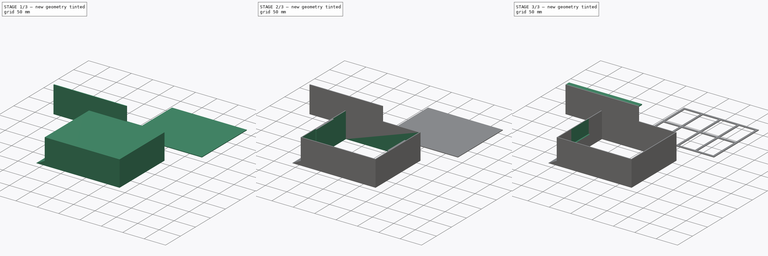
[diagram: build sequence overview — one tinted view per stage of 3, left to right]
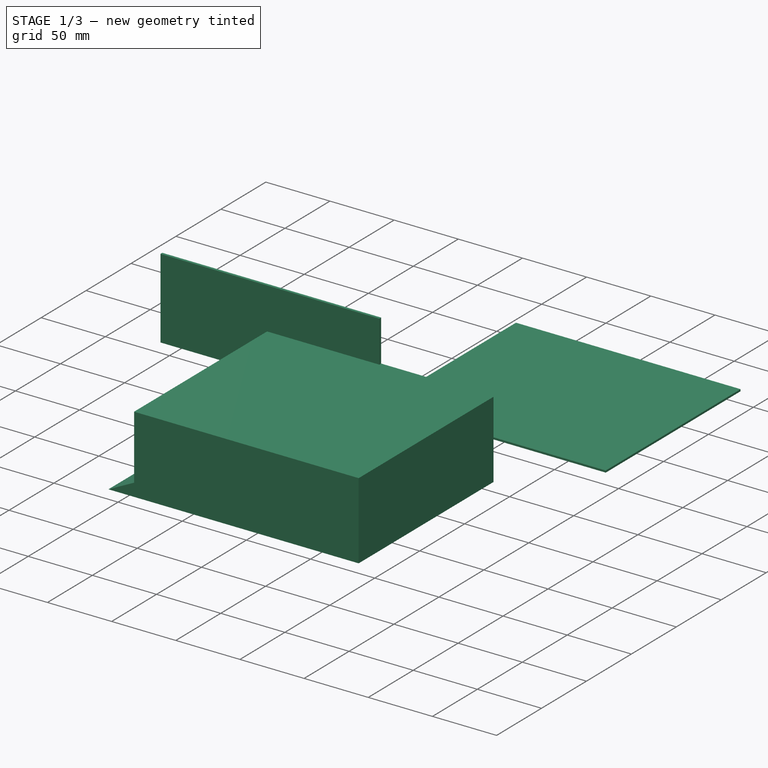
[diagram: stage 1 of 3 — iso view after this stage's code; geometry added in this stage tinted green]
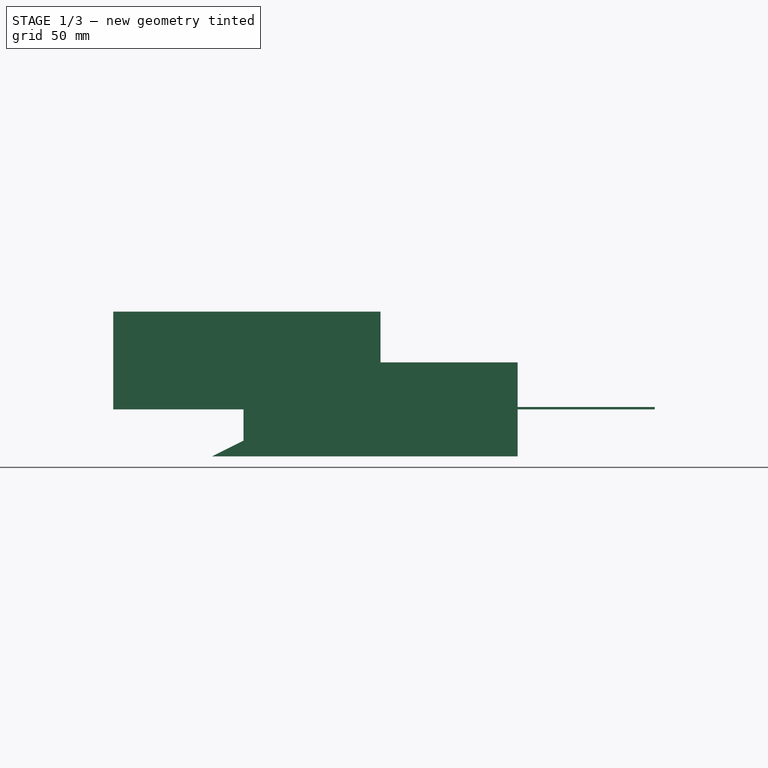
[diagram: stage 1 of 3 — front view after this stage's code; geometry added in this stage tinted green]
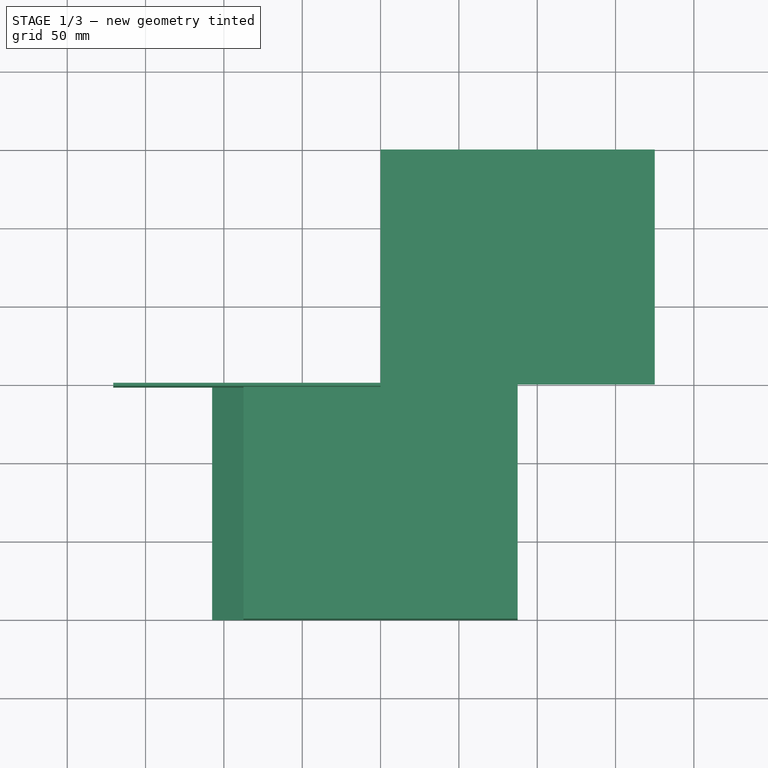
[diagram: stage 1 of 3 — top view after this stage's code; geometry added in this stage tinted green]
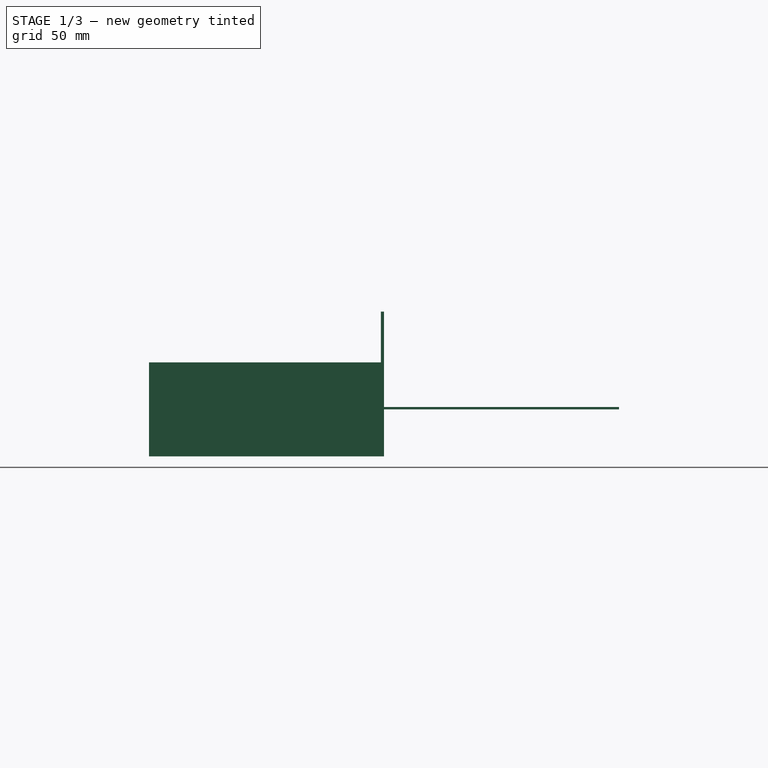
[diagram: stage 1 of 3 — right view after this stage's code; geometry added in this stage tinted green]
FCSTD DOCUMENT  (FreeCAD 0.21R33771 (Git))
Label: v3
License: All rights reserved
LicenseURL: http://en.wikipedia.org/wiki/All_rights_reserved
objects: Sketcher::SketchObject×8, PartDesign::Pad×4, PartDesign::Pocket×4, PartDesign::Body×3, App::Part×3, App::MeasureDistance×2, Spreadsheet::Sheet×1
note: 27 computed .brp shape members not serialized (recipe doc carries the construction recipe); baked Part::Feature solids carry a one-line shape summary decoded from their .brp

FEATURE [Sketcher::SketchObject] Sketch
  FullyConstrained = true
  MapMode = 5
  Placement = pos=(0,0,0) rot=(1,0,0;1.5708rad)
  Support = -> [XZ_Plane001]
  expr: Constraints[10] = <<parameters>>.wedge_height
  expr: Constraints[11] = <<parameters>>.wedge_length + <<parameters>>.length
  expr: Constraints[13] = <<parameters>>.height / 2
  expr: Constraints[14] = <<parameters>>.height
  expr: Constraints[8] = <<parameters>>.length
  expr: Constraints[9] = <<parameters>>.length / 2
  sketch-geometry (5):
    g0: LineSegment StartX=-87.5 StartY=30 StartZ=0 EndX=87.5 EndY=30 EndZ=0
    g1: LineSegment StartX=87.5 StartY=30 StartZ=0 EndX=87.5 EndY=-30 EndZ=0
    g2: LineSegment StartX=-107.5 StartY=-30 StartZ=0 EndX=87.5 EndY=-30 EndZ=0
    g3: LineSegment StartX=-107.5 StartY=-30 StartZ=0 EndX=-87.5 EndY=-20 EndZ=0
    g4: LineSegment StartX=-87.5 StartY=30 StartZ=0 EndX=-87.5 EndY=-20 EndZ=0
  constraints (15):
    c: Coincident(g0,g1)
    c: Horizontal(g0)
    c: Vertical(g1)
    c: Coincident(g2,g1)
    c: Horizontal(g2)
    c: Coincident(g3,g2)
    c: Coincident(g4,g3)
    c: Vertical(g4)
    c: DistanceX(g4,g0) = 175
    c: DistanceX(g1) = 87.5
    c: DistanceY(g2,g3) = 10
    c: DistanceX(g2,g2) = 195
    c: Coincident(g0,g4)
    c: DistanceY(g-1,g0) = 30
    c: DistanceY(g1,g1) = 60
FEATURE [PartDesign::Pad] Pad
  Direction = (0,-1,0)
  Length = 150
  Length2 = 10
  Placement = pos=(0,0,0) rot=(1,0,0;1.5708rad)
  Profile = -> Sketch
  ReferenceAxis = -> Sketch [N_Axis]
  Type = 0
  UseCustomVector = true
  expr: Length = <<parameters>>.width
FEATURE [PartDesign::Body] Body
  Group = -> [Sketch,Pad,Sketch002,Pocket,Sketch003,Pocket001,Sketch004,Pocket002]
  Origin = -> Origin001
  Tip = -> Pocket002
FEATURE [App::Part] Part  label="main_body"
  Group = -> [Body]
  Origin = -> Origin
FEATURE [Sketcher::SketchObject] Sketch005
  FullyConstrained = true
  MapMode = 5
  Placement = pos=(0,0,0) rot=(1,0,0;1.5708rad)
  Support = -> [XZ_Plane003]
  expr: Constraints[8] = <<parameters>>.length - 2 * <<parameters>>.sheet_thinkness - 2 * <<parameters>>.error
  expr: Constraints[9] = <<parameters>>.width - 2 * (<<parameters>>.sheet_thinkness + <<parameters>>.wheel_thickness + <<parameters>>.wheel_margin_side) + 2 * (<<parameters>>.error + <<parameters>>.outer_interlock_t)
  sketch-geometry (4):
    g0: LineSegment StartX=-170.6 StartY=62.4 StartZ=0 EndX=0 EndY=62.4 EndZ=0
    g1: LineSegment StartX=0 StartY=62.4 StartZ=0 EndX=0 EndY=0 EndZ=0
    g2: LineSegment StartX=0 StartY=0 StartZ=0 EndX=-170.6 EndY=0 EndZ=0
    g3: LineSegment StartX=-170.6 StartY=0 StartZ=0 EndX=-170.6 EndY=62.4 EndZ=0
  constraints (12):
    c: Coincident(g0,g1)
    c: Coincident(g1,g2)
    c: Coincident(g2,g3)
    c: Coincident(g3,g0)
    c: Horizontal(g0)
    c: Horizontal(g2)
    c: Vertical(g1)
    c: Vertical(g3)
    c: DistanceX(g0,g0) = 170.6
    c: DistanceY(g3,g3) = 62.4
    c: DistanceX(g-1,g1) = 0
    c: DistanceY(g1,g-1) = 0
FEATURE [PartDesign::Pad] Pad001  label="base_body"
  Direction = (0,-1,-2e-16)
  Length = 2
  Length2 = 10
  Placement = pos=(0,0,0) rot=(1,0,0;1.5708rad)
  Profile = -> Sketch005
  ReferenceAxis = -> Sketch005 [N_Axis]
  Type = 0
  expr: Length = <<parameters>>.base_sheet_thickness
FEATURE [PartDesign::Body] Body001  label="base"
  Group = -> [Sketch005,Pad001,Sketch006,Pad002]
  Origin = -> Origin003
  Tip = -> Pad002
FEATURE [App::Part] Part001  label="motor_base"
  Group = -> [Body001]
  Origin = -> Origin002
  Placement = pos=(85.5,-106,-23.5) rot=(1,0,0;4.71239rad)
FEATURE [Sketcher::SketchObject] Sketch007
  FullyConstrained = true
  MapMode = 5
  Support = -> [XY_Plane005]
  expr: Constraints[8] = <<parameters>>.width
  expr: Constraints[9] = <<parameters>>.length
  sketch-geometry (4):
    g0: LineSegment StartX=0 StartY=150 StartZ=0 EndX=175 EndY=150 EndZ=0
    g1: LineSegment StartX=175 StartY=150 StartZ=0 EndX=175 EndY=0 EndZ=0
    g2: LineSegment StartX=175 StartY=0 StartZ=0 EndX=0 EndY=0 EndZ=0
    g3: LineSegment StartX=0 StartY=0 StartZ=0 EndX=0 EndY=150 EndZ=0
  constraints (12):
    c: Coincident(g0,g1)
    c: Coincident(g1,g2)
    c: Coincident(g2,g3)
    c: Coincident(g3,g0)
    c: Horizontal(g0)
    c: Horizontal(g2)
    c: Vertical(g1)
    c: Vertical(g3)
    c: DistanceY(g1,g1) = 150
    c: DistanceX(g0,g0) = 175
    c: DistanceX(g0,g-1) = 0
    c: DistanceY(g2,g-1) = 0
FEATURE [PartDesign::Pad] Pad003  label="top_base"
  Direction = (0,0,1)
  Length = 1.5
  Length2 = 10
  Profile = -> Sketch007
  ReferenceAxis = -> Sketch007 [N_Axis]
  Type = 0
  expr: Length = <<parameters>>.top_sheet
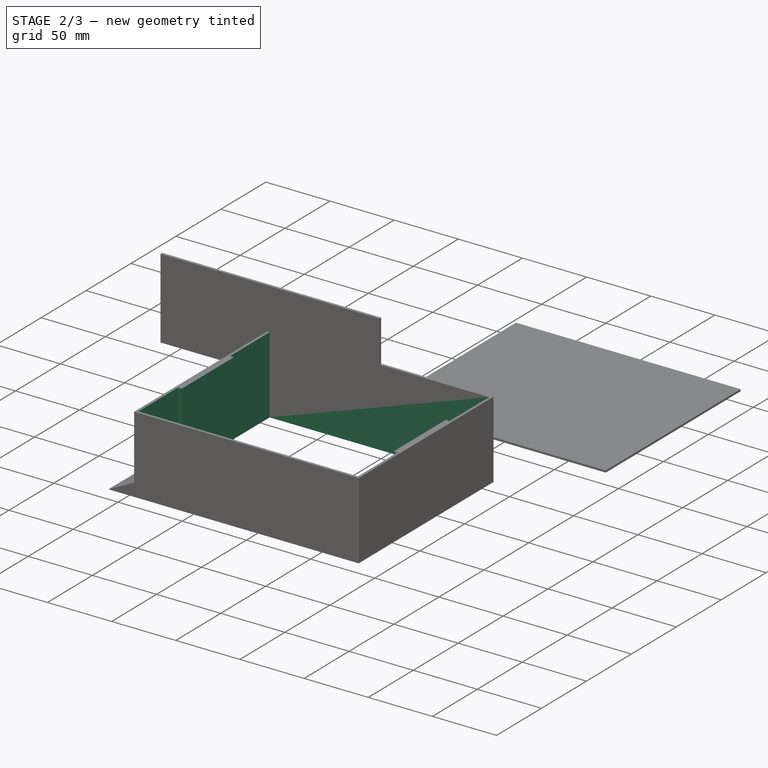
[diagram: stage 2 of 3 — iso view after this stage's code; geometry added in this stage tinted green]
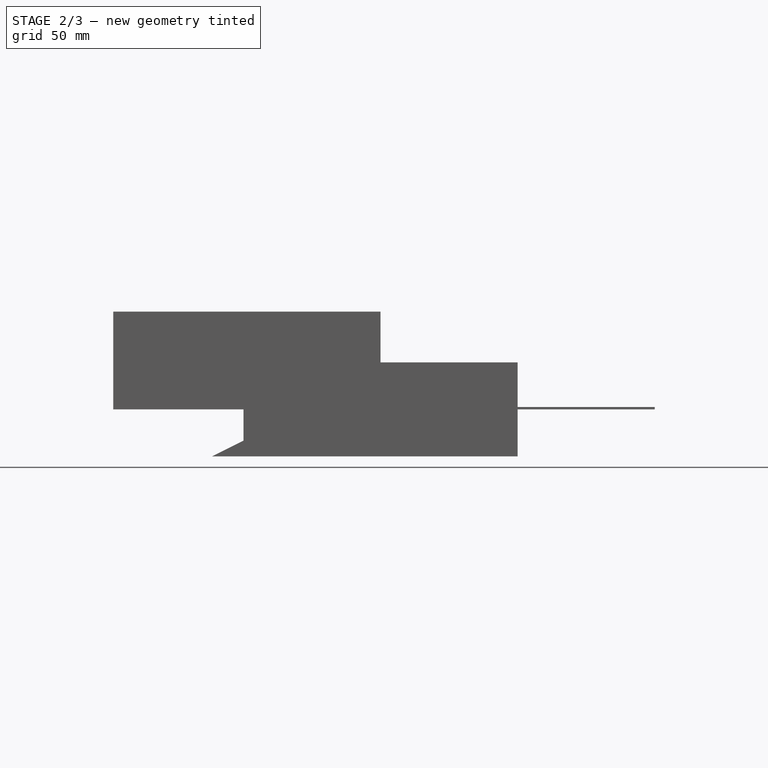
[diagram: stage 2 of 3 — front view after this stage's code; geometry added in this stage tinted green]
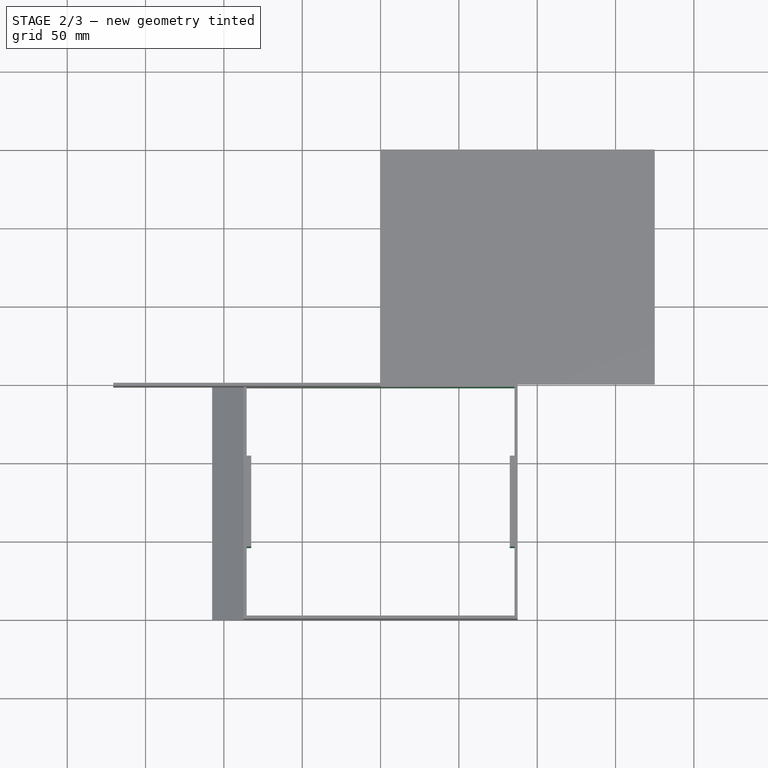
[diagram: stage 2 of 3 — top view after this stage's code; geometry added in this stage tinted green]
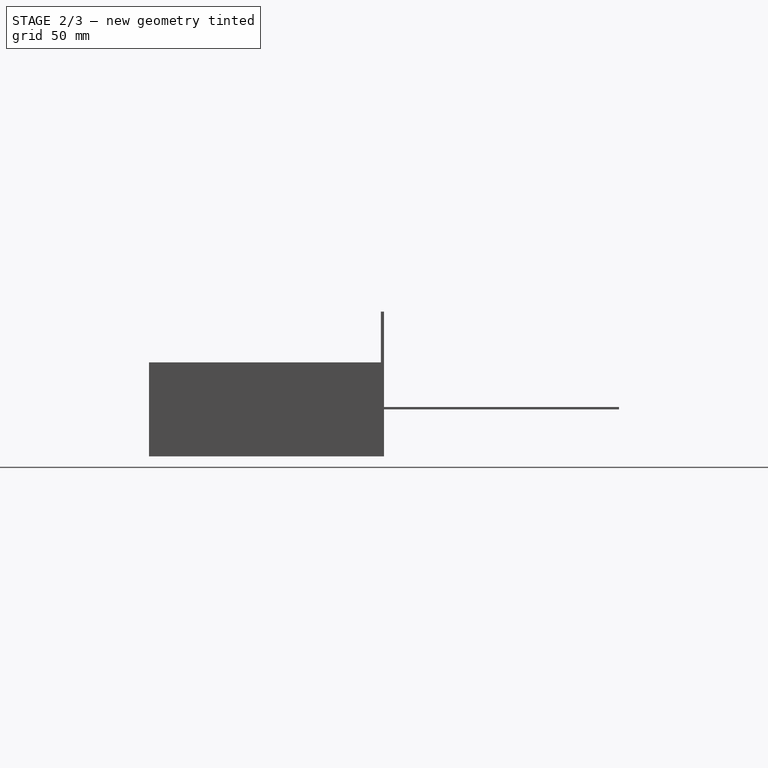
[diagram: stage 2 of 3 — right view after this stage's code; geometry added in this stage tinted green]
FEATURE [Sketcher::SketchObject] Sketch002  label="bottom_cut"
  FullyConstrained = true
  MapMode = 5
  Placement = pos=(0,0,-30) rot=(1,0,0;3.14159rad)
  Support = -> [Pad]
  expr: Constraints[10] = <<parameters>>.length / 2 - <<parameters>>.sheet_thinkness
  expr: Constraints[11] = <<parameters>>.sheet_thinkness
  expr: Constraints[22] = <<parameters>>.wheel_thickness + <<parameters>>.wheel_margin_side
  expr: Constraints[23] = <<parameters>>.width - <<parameters>>.sheet_thinkness
  expr: Constraints[8] = <<parameters>>.wheel_thickness + <<parameters>>.wheel_margin_side
  expr: Constraints[9] = <<parameters>>.length - 2 * <<parameters>>.sheet_thinkness
  sketch-geometry (8):
    g0: LineSegment StartX=-85.5 StartY=46 StartZ=0 EndX=85.5 EndY=46 EndZ=0
    g1: LineSegment StartX=85.5 StartY=46 StartZ=0 EndX=85.5 EndY=2 EndZ=0
    g2: LineSegment StartX=85.5 StartY=2 StartZ=0 EndX=-85.5 EndY=2 EndZ=0
    g3: LineSegment StartX=-85.5 StartY=2 StartZ=0 EndX=-85.5 EndY=46 EndZ=0
    g4: LineSegment StartX=-85.5 StartY=148 StartZ=0 EndX=85.5 EndY=148 EndZ=0
    g5: LineSegment StartX=85.5 StartY=148 StartZ=0 EndX=85.5 EndY=104 EndZ=0
    g6: LineSegment StartX=85.5 StartY=104 StartZ=0 EndX=-85.5 EndY=104 EndZ=0
    g7: LineSegment StartX=-85.5 StartY=104 StartZ=0 EndX=-85.5 EndY=148 EndZ=0
  constraints (24):
    c: Coincident(g0,g1)
    c: Coincident(g1,g2)
    c: Coincident(g2,g3)
    c: Coincident(g3,g0)
    c: Horizontal(g0)
    c: Horizontal(g2)
    c: Vertical(g1)
    c: Vertical(g3)
    c: DistanceY(g1,g1) = 44
    c: DistanceX(g2,g2) = 171
    c: DistanceX(g-1,g1) = 85.5
    c: DistanceY(g-1,g1) = 2
    c: Coincident(g4,g5)
    c: Coincident(g5,g6)
    c: Coincident(g6,g7)
    c: Coincident(g7,g4)
    c: Horizontal(g4)
    c: Horizontal(g6)
    c: Vertical(g5)
    c: Vertical(g7)
    c: DistanceX(g5,g0) = 0
    c: DistanceX(g6,g0) = 0
    c: DistanceY(g6,g4) = 44
    c: DistanceY(g-1,g4) = 148
FEATURE [PartDesign::Pocket] Pocket  label="wheel_pocket"
  BaseFeature = -> Pad
  Direction = (0,0,1)
  Length = 60
  Length2 = 5
  Placement = pos=(0,0,0) rot=(1,0,0;1.5708rad)
  Profile = -> Sketch002
  ReferenceAxis = -> Sketch002 [N_Axis]
  Type = 0
  expr: Length = <<parameters>>.height
FEATURE [Sketcher::SketchObject] Sketch003  label="interlock"
  FullyConstrained = true
  MapMode = 5
  Placement = pos=(0,0,-30) rot=(1,0,0;3.14159rad)
  Support = -> [Pocket]
  expr: Constraints[10] = <<parameters>>.sheet_thinkness + <<parameters>>.wheel_thickness + <<parameters>>.wheel_margin_side
  expr: Constraints[11] = <<parameters>>.width - <<parameters>>.sheet_thinkness - <<parameters>>.wheel_thickness - <<parameters>>.wheel_margin_side
  expr: Constraints[8] = <<parameters>>.length - 2 * <<parameters>>.base_sheet_interlock_thickness - 2 * <<parameters>>.sheet_thinkness
  expr: Constraints[9] = <<parameters>>.length / 2 - <<parameters>>.sheet_thinkness - <<parameters>>.base_sheet_interlock_thickness
  sketch-geometry (4):
    g0: LineSegment StartX=-82.5 StartY=104 StartZ=0 EndX=82.5 EndY=104 EndZ=0
    g1: LineSegment StartX=82.5 StartY=104 StartZ=0 EndX=82.5 EndY=46 EndZ=0
    g2: LineSegment StartX=82.5 StartY=46 StartZ=0 EndX=-82.5 EndY=46 EndZ=0
    g3: LineSegment StartX=-82.5 StartY=46 StartZ=0 EndX=-82.5 EndY=104 EndZ=0
  constraints (12):
    c: Coincident(g0,g1)
    c: Coincident(g1,g2)
    c: Coincident(g2,g3)
    c: Coincident(g3,g0)
    c: Horizontal(g0)
    c: Horizontal(g2)
    c: Vertical(g1)
    c: Vertical(g3)
    c: DistanceX(g2,g2) = 165
    c: DistanceX(g-1,g1) = 82.5
    c: DistanceY(g-1,g1) = 46
    c: DistanceY(g-1,g0) = 104
FEATURE [PartDesign::Pocket] Pocket001  label="interlock_pocket"
  BaseFeature = -> Pocket
  Direction = (0,0,1)
  Length = 60
  Length2 = 5
  Placement = pos=(0,0,0) rot=(1,0,0;1.5708rad)
  Profile = -> Sketch003
  ReferenceAxis = -> Sketch003 [N_Axis]
  Type = 0
  expr: Length = <<parameters>>.height
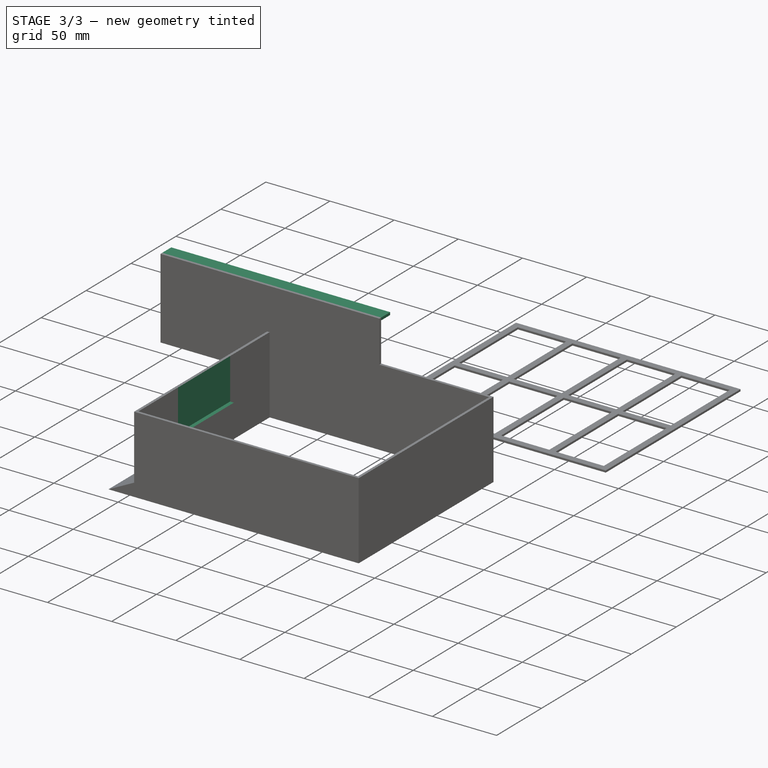
[diagram: stage 3 of 3 — iso view after this stage's code; geometry added in this stage tinted green]
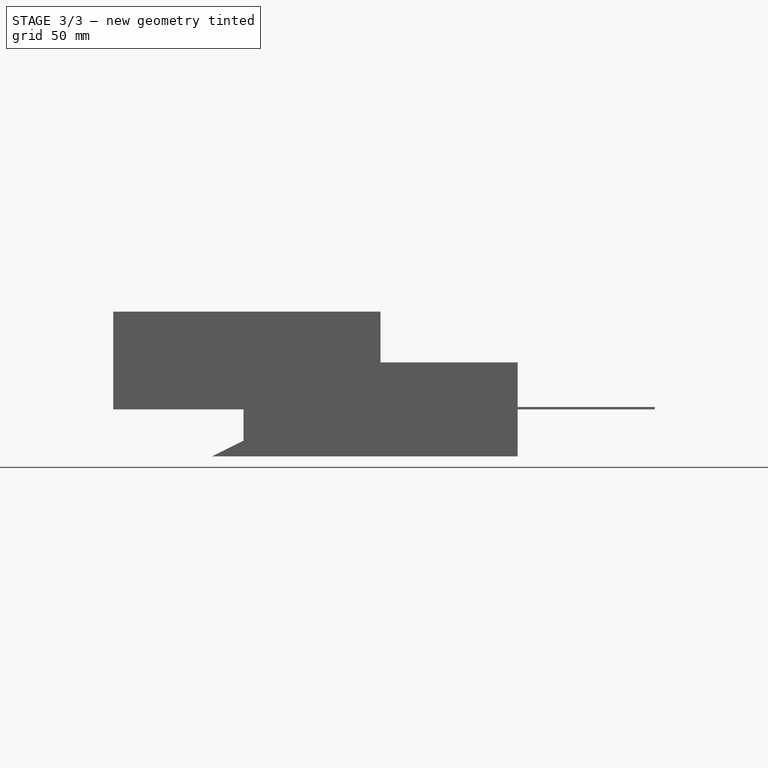
[diagram: stage 3 of 3 — front view after this stage's code; geometry added in this stage tinted green]
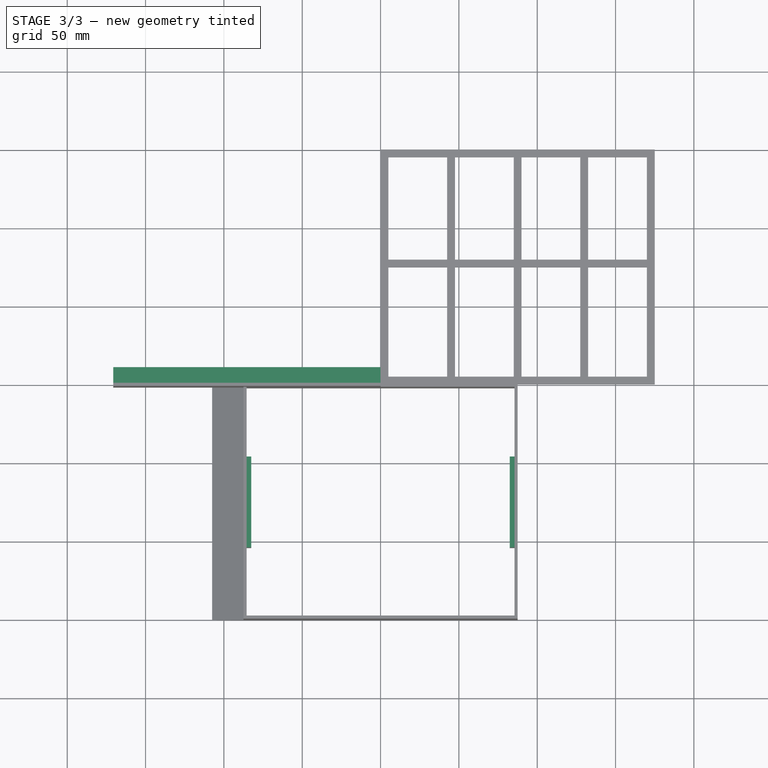
[diagram: stage 3 of 3 — top view after this stage's code; geometry added in this stage tinted green]
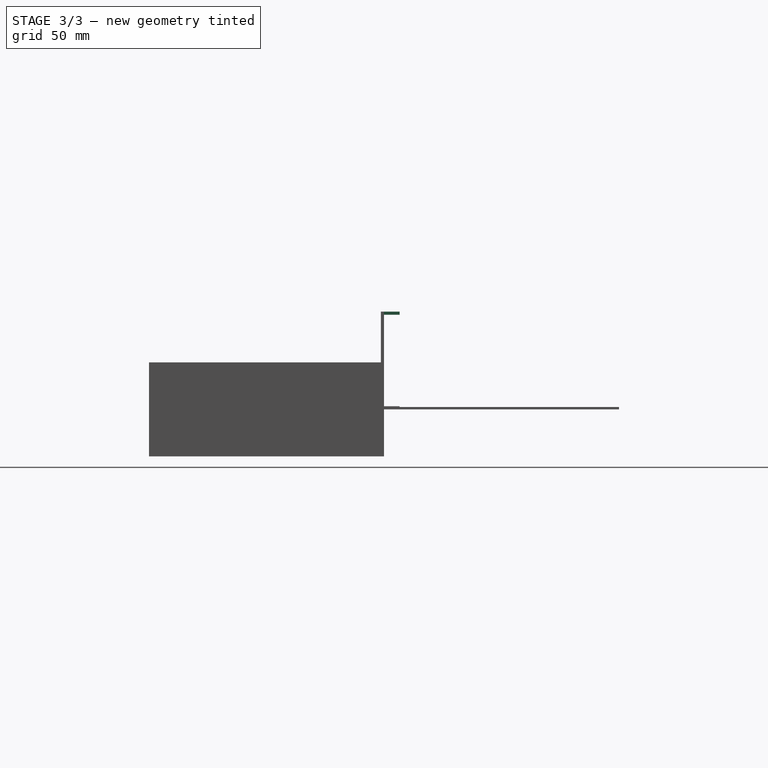
[diagram: stage 3 of 3 — right view after this stage's code; geometry added in this stage tinted green]
FEATURE [Sketcher::SketchObject] Sketch004
  FullyConstrained = true
  MapMode = 5
  Placement = pos=(0,0,30) rot=(0,0,1;3.14159rad)
  Support = -> [Pocket001]
  expr: Constraints[16] = <<parameters>>.length / 2 - <<parameters>>.sheet_thinkness
  expr: Constraints[17] = <<parameters>>.base_sheet_interlock_thickness
  expr: Constraints[18] = <<parameters>>.width - 2 * (<<parameters>>.wheel_thickness + <<parameters>>.wheel_margin_side + <<parameters>>.sheet_thinkness)
  expr: Constraints[19] = <<parameters>>.sheet_thinkness + <<parameters>>.wheel_thickness + <<parameters>>.wheel_margin_side
  expr: Constraints[20] = <<parameters>>.length / 2 - <<parameters>>.sheet_thinkness
  expr: Constraints[21] = <<parameters>>.base_sheet_interlock_thickness
  expr: Constraints[22] = <<parameters>>.width - 2 * (<<parameters>>.wheel_thickness + <<parameters>>.wheel_margin_side + <<parameters>>.sheet_thinkness)
  expr: Constraints[23] = <<parameters>>.sheet_thinkness + <<parameters>>.wheel_thickness + <<parameters>>.wheel_margin_side
  sketch-geometry (8):
    g0: LineSegment StartX=-85.5 StartY=104 StartZ=0 EndX=-82.5 EndY=104 EndZ=0
    g1: LineSegment StartX=-82.5 StartY=104 StartZ=0 EndX=-82.5 EndY=46 EndZ=0
    g2: LineSegment StartX=-82.5 StartY=46 StartZ=0 EndX=-85.5 EndY=46 EndZ=0
    g3: LineSegment StartX=-85.5 StartY=46 StartZ=0 EndX=-85.5 EndY=104 EndZ=0
    g4: LineSegment StartX=82.5 StartY=104 StartZ=0 EndX=85.5 EndY=104 EndZ=0
    g5: LineSegment StartX=85.5 StartY=104 StartZ=0 EndX=85.5 EndY=46 EndZ=0
    g6: LineSegment StartX=85.5 StartY=46 StartZ=0 EndX=82.5 EndY=46 EndZ=0
    g7: LineSegment StartX=82.5 StartY=46 StartZ=0 EndX=82.5 EndY=104 EndZ=0
  constraints (24):
    c: Coincident(g0,g1)
    c: Coincident(g1,g2)
    c: Coincident(g2,g3)
    c: Coincident(g3,g0)
    c: Horizontal(g0)
    c: Horizontal(g2)
    c: Vertical(g1)
    c: Vertical(g3)
    c: Coincident(g4,g5)
    c: Coincident(g5,g6)
    c: Coincident(g6,g7)
    c: Coincident(g7,g4)
    c: Horizontal(g4)
    c: Horizontal(g6)
    c: Vertical(g5)
    c: Vertical(g7)
    c: DistanceX(g2,g-1) = 85.5
    c: DistanceX(g0,g0) = 3
    c: DistanceY(g3,g3) = 58
    c: DistanceY(g-1,g1) = 46
    c: DistanceX(g-1,g5) = 85.5
    c: DistanceX(g6,g5) = 3
    c: DistanceY(g5,g5) = 58
    c: DistanceY(g-1,g5) = 46
FEATURE [PartDesign::Pocket] Pocket002
  BaseFeature = -> Pocket001
  Direction = (0,0,-1)
  Length = 32
  Length2 = 5
  Placement = pos=(0,0,0) rot=(1,0,0;1.5708rad)
  Profile = -> Sketch004
  ReferenceAxis = -> Sketch004 [N_Axis]
  Type = 0
  expr: Length = <<parameters>>.height - Spreadsheet.wheel_r + <<parameters>>.motor_shaft_h + <<parameters>>.base_sheet_thickness
FEATURE [Sketcher::SketchObject] Sketch006
  FullyConstrained = true
  MapMode = 5
  Placement = pos=(0,0,0) rot=(-1,0,0;1.5708rad)
  Support = -> [Pad001]
  expr: Constraints[11] = <<parameters>>.outer_interlock_t
  expr: Constraints[20] = <<parameters>>.outer_interlock_t
  expr: Constraints[22] = <<parameters>>.width - 2 * (<<parameters>>.sheet_thinkness + <<parameters>>.wheel_thickness + <<parameters>>.wheel_margin_side) + 2 * (<<parameters>>.error + <<parameters>>.outer_interlock_t)
  expr: Constraints[23] = <<parameters>>.length - 2 * <<parameters>>.sheet_thinkness - 2 * <<parameters>>.error
  expr: Constraints[8] = <<parameters>>.length - 2 * <<parameters>>.sheet_thinkness - 2 * <<parameters>>.error
  sketch-geometry (8):
    g0: LineSegment StartX=-170.6 StartY=0 StartZ=0 EndX=0 EndY=0 EndZ=0
    g1: LineSegment StartX=0 StartY=0 StartZ=0 EndX=0 EndY=-2 EndZ=0
    g2: LineSegment StartX=0 StartY=-2 StartZ=0 EndX=-170.6 EndY=-2 EndZ=0
    g3: LineSegment StartX=-170.6 StartY=-2 StartZ=0 EndX=-170.6 EndY=0 EndZ=0
    g4: LineSegment StartX=-170.6 StartY=-60.4 StartZ=0 EndX=0 EndY=-60.4 EndZ=0
    g5: LineSegment StartX=0 StartY=-60.4 StartZ=0 EndX=0 EndY=-62.4 EndZ=0
    g6: LineSegment StartX=0 StartY=-62.4 StartZ=0 EndX=-170.6 EndY=-62.4 EndZ=0
    g7: LineSegment StartX=-170.6 StartY=-62.4 StartZ=0 EndX=-170.6 EndY=-60.4 EndZ=0
  constraints (24):
    c: Coincident(g0,g1)
    c: Coincident(g1,g2)
    c: Coincident(g2,g3)
    c: Coincident(g3,g0)
    c: Horizontal(g0)
    c: Horizontal(g2)
    c: Vertical(g1)
    c: Vertical(g3)
    c: DistanceX(g2,g2) = 170.6
    c: DistanceX(g1,g-1) = 0
    c: DistanceY(g0,g-1) = 0
    c: DistanceY(g2,g0) = 2
    c: Coincident(g4,g5)
    c: Coincident(g5,g6)
    c: Coincident(g6,g7)
    c: Coincident(g7,g4)
    c: Horizontal(g4)
    c: Horizontal(g6)
    c: Vertical(g5)
    c: Vertical(g7)
    c: DistanceY(g5,g4) = 2
    c: DistanceX(g4,g0) = 0
    c: DistanceY(g5,g0) = 62.4
    c: DistanceX(g4,g4) = 170.6
FEATURE [PartDesign::Pad] Pad002  label="outer_interlock"
  BaseFeature = -> Pad001
  Direction = (0,1,2e-16)
  Length = 10
  Length2 = 10
  Placement = pos=(0,0,0) rot=(1,0,0;1.5708rad)
  Profile = -> Sketch006
  ReferenceAxis = -> Sketch006 [N_Axis]
  Type = 0
  expr: Length = <<parameters>>.outer_interlock_h
FEATURE [Sketcher::SketchObject] Sketch008
  FullyConstrained = true
  MapMode = 5
  Placement = pos=(0,0,1.5) rot=(0,0,1;0rad)
  Support = -> [Pad003]
  expr: Constraints[64] = <<parameters>>.top_sheet_gap
  expr: Constraints[65] = <<parameters>>.top_sheet_gap
  expr: Constraints[66] = <<parameters>>.top_sheet_gap
  expr: Constraints[67] = <<parameters>>.top_sheet_gap
  expr: Constraints[68] = <<parameters>>.length - <<parameters>>.top_sheet_gap
  expr: Constraints[69] = <<parameters>>.top_sheet_gap
  expr: Constraints[70] = <<parameters>>.top_sheet_gap
  expr: Constraints[71] = <<parameters>>.top_sheet_gap
  expr: Constraints[72] = <<parameters>>.length - <<parameters>>.top_sheet_gap
  expr: Constraints[73] = <<parameters>>.top_sheet_gap
  expr: Constraints[74] = <<parameters>>.width - <<parameters>>.top_sheet_gap
  expr: Constraints[78] = <<parameters>>.top_sheet_gap
  expr: Constraints[92] = <<parameters>>.top_sheet_gap
  expr: Constraints[93] = (<<parameters>>.length - 5 * <<parameters>>.top_sheet_gap) / 4
  expr: Constraints[94] = (<<parameters>>.length - 5 * <<parameters>>.top_sheet_gap) / 4
  expr: Constraints[95] = (<<parameters>>.length - 5 * <<parameters>>.top_sheet_gap) / 4
  sketch-geometry (32):
    g0: LineSegment StartX=5 StartY=145 StartZ=0 EndX=42.5 EndY=145 EndZ=0
    g1: LineSegment StartX=42.5 StartY=145 StartZ=0 EndX=42.5 EndY=79.68 EndZ=0
    g2: LineSegment StartX=42.5 StartY=79.68 StartZ=0 EndX=5 EndY=79.68 EndZ=0
    g3: LineSegment StartX=5 StartY=79.68 StartZ=0 EndX=5 EndY=145 EndZ=0
    g4: LineSegment StartX=47.5 StartY=145 StartZ=0 EndX=85 EndY=145 EndZ=0
    g5: LineSegment StartX=85 StartY=145 StartZ=0 EndX=85 EndY=79.68 EndZ=0
    g6: LineSegment StartX=85 StartY=79.68 StartZ=0 EndX=47.5 EndY=79.68 EndZ=0
    g7: LineSegment StartX=47.5 StartY=79.68 StartZ=0 EndX=47.5 EndY=145 EndZ=0
    g8: LineSegment StartX=90 StartY=145 StartZ=0 EndX=127.5 EndY=145 EndZ=0
    g9: LineSegment StartX=127.5 StartY=145 StartZ=0 EndX=127.5 EndY=79.68 EndZ=0
    g10: LineSegment StartX=127.5 StartY=79.68 StartZ=0 EndX=90 EndY=79.68 EndZ=0
    g11: LineSegment StartX=90 StartY=79.68 StartZ=0 EndX=90 EndY=145 EndZ=0
    g12: LineSegment StartX=132.5 StartY=145 StartZ=0 EndX=170 EndY=145 EndZ=0
    g13: LineSegment StartX=170 StartY=145 StartZ=0 EndX=170 EndY=79.68 EndZ=0
    g14: LineSegment StartX=170 StartY=79.68 StartZ=0 EndX=132.5 EndY=79.68 EndZ=0
    g15: LineSegment StartX=132.5 StartY=79.68 StartZ=0 EndX=132.5 EndY=145 EndZ=0
    g16: LineSegment StartX=5 StartY=74.68 StartZ=0 EndX=42.5 EndY=74.68 EndZ=0
    g17: LineSegment StartX=42.5 StartY=74.68 StartZ=0 EndX=42.5 EndY=5 EndZ=0
    g18: LineSegment StartX=42.5 StartY=5 StartZ=0 EndX=5 EndY=5 EndZ=0
    g19: LineSegment StartX=5 StartY=5 StartZ=0 EndX=5 EndY=74.68 EndZ=0
    g20: LineSegment StartX=47.5 StartY=74.68 StartZ=0 EndX=85 EndY=74.68 EndZ=0
    g21: LineSegment StartX=85 StartY=74.68 StartZ=0 EndX=85 EndY=5 EndZ=0
    g22: LineSegment StartX=85 StartY=5 StartZ=0 EndX=47.5 EndY=5 EndZ=0
    g23: LineSegment StartX=47.5 StartY=5 StartZ=0 EndX=47.5 EndY=74.68 EndZ=0
    g24: LineSegment StartX=90 StartY=74.68 StartZ=0 EndX=127.5 EndY=74.68 EndZ=0
    g25: LineSegment StartX=127.5 StartY=74.68 StartZ=0 EndX=127.5 EndY=5 EndZ=0
    g26: LineSegment StartX=127.5 StartY=5 StartZ=0 EndX=90 EndY=5 EndZ=0
    g27: LineSegment StartX=90 StartY=5 StartZ=0 EndX=90 EndY=74.68 EndZ=0
    g28: LineSegment StartX=132.5 StartY=74.68 StartZ=0 EndX=170 EndY=74.68 EndZ=0
    g29: LineSegment StartX=170 StartY=74.68 StartZ=0 EndX=170 EndY=5 EndZ=0
    g30: LineSegment StartX=170 StartY=5 StartZ=0 EndX=132.5 EndY=5 EndZ=0
    g31: LineSegment StartX=132.5 StartY=5 StartZ=0 EndX=132.5 EndY=74.68 EndZ=0
  constraints (96):
    c: Coincident(g0,g1)
    c: Coincident(g1,g2)
    c: Coincident(g2,g3)
    c: Coincident(g3,g0)
    c: Horizontal(g0)
    c: Horizontal(g2)
    c: Vertical(g1)
    c: Vertical(g3)
    c: Coincident(g4,g5)
    c: Coincident(g5,g6)
    c: Coincident(g6,g7)
    c: Coincident(g7,g4)
    c: Horizontal(g4)
    c: Horizontal(g6)
    c: Vertical(g5)
    c: Vertical(g7)
    c: Coincident(g8,g9)
    c: Coincident(g9,g10)
    c: Coincident(g10,g11)
    c: Coincident(g11,g8)
    c: Horizontal(g8)
    c: Horizontal(g10)
    c: Vertical(g9)
    c: Vertical(g11)
    c: Coincident(g12,g13)
    c: Coincident(g13,g14)
    c: Coincident(g14,g15)
    c: Coincident(g15,g12)
    c: Horizontal(g12)
    c: Horizontal(g14)
    c: Vertical(g13)
    c: Vertical(g15)
    c: Coincident(g16,g17)
    c: Coincident(g17,g18)
    c: Coincident(g18,g19)
    c: Coincident(g19,g16)
    c: Horizontal(g16)
    c: Horizontal(g18)
    c: Vertical(g17)
    c: Vertical(g19)
    c: Coincident(g20,g21)
    c: Coincident(g21,g22)
    c: Coincident(g22,g23)
    c: Coincident(g23,g20)
    c: Horizontal(g20)
    c: Horizontal(g22)
    c: Vertical(g21)
    c: Vertical(g23)
    c: Coincident(g24,g25)
    c: Coincident(g25,g26)
    c: Coincident(g26,g27)
    c: Coincident(g27,g24)
    c: Horizontal(g24)
    c: Horizontal(g26)
    c: Vertical(g25)
    c: Vertical(g27)
    c: Coincident(g28,g29)
    c: Coincident(g29,g30)
    c: Coincident(g30,g31)
    c: Coincident(g31,g28)
    c: Horizontal(g28)
    c: Horizontal(g30)
    c: Vertical(g29)
    c: Vertical(g31)
    c: DistanceX(g-1,g18) = 5
    c: DistanceX(g17,g22) = 5
    c: DistanceX(g21,g26) = 5
    c: DistanceX(g25,g30) = 5
    c: DistanceX(g-1,g29) = 170
    c: DistanceX(g1,g6) = 5
    c: DistanceX(g5,g10) = 5
    c: DistanceX(g9,g14) = 5
    c: DistanceX(g-1,g13) = 170
    c: DistanceX(g-1,g2) = 5
    c: DistanceY(g-1,g0) = 145
    c: DistanceY(g4,g0) = 0
    c: DistanceY(g8,g4) = 0
    c: DistanceY(g12,g8) = 0
    c: DistanceY(g16,g2) = 5
    c: DistanceY(g1) = 79.68
    c: DistanceY(g1,g6) = 0
    c: DistanceY(g10,g5) = 0
    c: DistanceY(g14,g9) = 0
    c: DistanceY(g16,g20) = 0
    c: DistanceY(g24,g20) = 0
    c: DistanceY(g28,g24) = 0
    c: DistanceX(g6,g20) = 0
    c: DistanceX(g5,g20) = 0
    c: DistanceX(g9,g24) = 0
    c: DistanceY(g22,g17) = 0
    c: DistanceY(g26,g21) = 0
    c: DistanceY(g30,g25) = 0
    c: DistanceY(g-1,g18) = 5
    c: DistanceX(g0,g0) = 37.5
    c: DistanceX(g4,g4) = 37.5
    c: DistanceX(g8,g8) = 37.5
FEATURE [PartDesign::Pocket] Pocket003  label="sections"
  BaseFeature = -> Pad003
  Direction = (0,0,-1)
  Length = 1.5
  Length2 = 5
  Profile = -> Sketch008
  ReferenceAxis = -> Sketch008 [N_Axis]
  Type = 0
  expr: Length = <<parameters>>.top_sheet
FEATURE [PartDesign::Body] Body002  label="top_body"
  Group = -> [Sketch007,Pad003,Sketch008,Pocket003]
  Origin = -> Origin005
  Tip = -> Pocket003
FEATURE [App::Part] Part002  label="top"
  Group = -> [Body002]
  Origin = -> Origin004
  Placement = pos=(-88,-150.5,49) rot=(0,0,1;0rad)
FEATURE [Spreadsheet::Sheet] Spreadsheet  label="parameters"
  cells = A1='height; B1(height)=60; C1==B1; A2='width; B2(width)=150; A3='length; B3(length)=175; A4='wedge_length; B4(wedge_length)=20; A5='wedge_height; B5(wedge_height)=10; A7='sheet_thinkness; B7(sheet_thinkness)=2; A8='wheel_r; B8(wheel_r)=40; A9='motor_shaft_h; B9(motor_shaft_h)=10; A10='wheel_margin_side; B10(wheel_margin_side)=7; C10='margin for wall; A11='wheel_margin_btw; B11(wheel_margin_btw)=5; A12='wheel_thickness; B12(wheel_thickness)=37; A13='base_sheet_thickness; B13(base_sheet_thickness)=2; A14='base_sheet_interlock_thickness; B14(base_sheet_interlock_thickness)=3; A15='error; B15(error)=0.2; A16='outer_interlock_t; B16(outer_interlock_t)=2; A17='outer_interlock_h; B17(outer_interlock_h)=10; A19='top_sheet; B19(top_sheet)=1.5; A20='top_sheet_gap; B20(top_sheet_gap)=5
FEATURE [App::MeasureDistance] Distance  label="Distance: 170.92 mm"
  Distance = 170.92
  P1 = (-85.1684,-148.489,50)
  P2 = (85.7519,-148.313,50)
FEATURE [App::MeasureDistance] Distance001  label="Distance: 199.42 mm"
  Distance = 199.419
  P1 = (-111.919,-150,-50)
  P2 = (87.5,-150,-50)
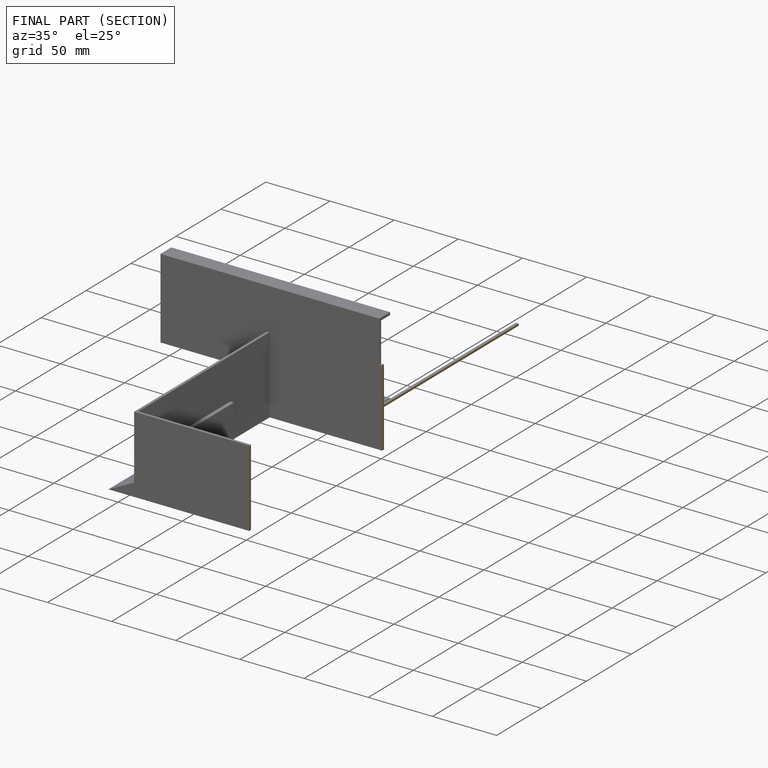
[diagram: finished part — half-section view (interior)]
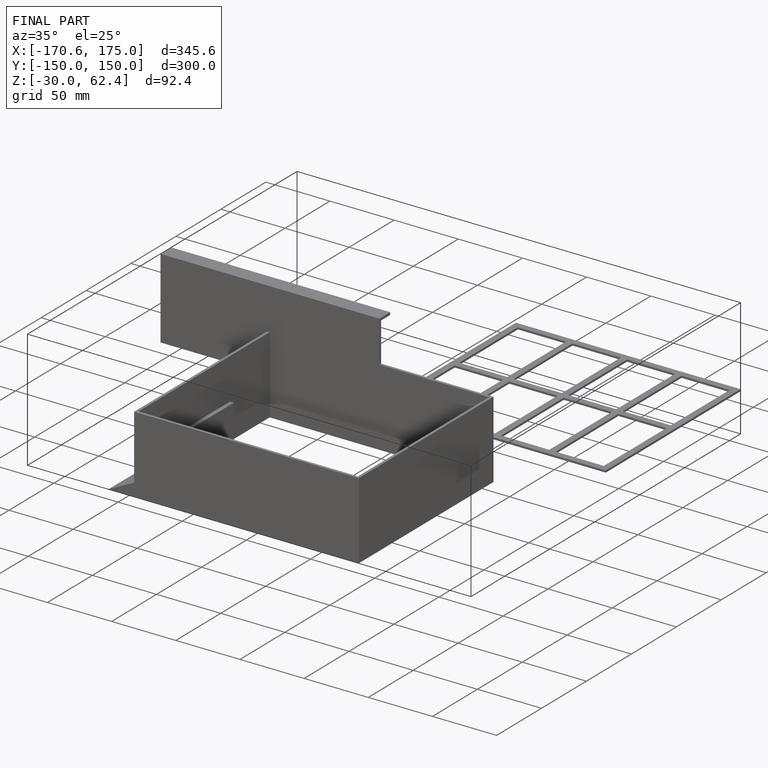
[diagram: finished part — iso view with bounding-box wireframe]
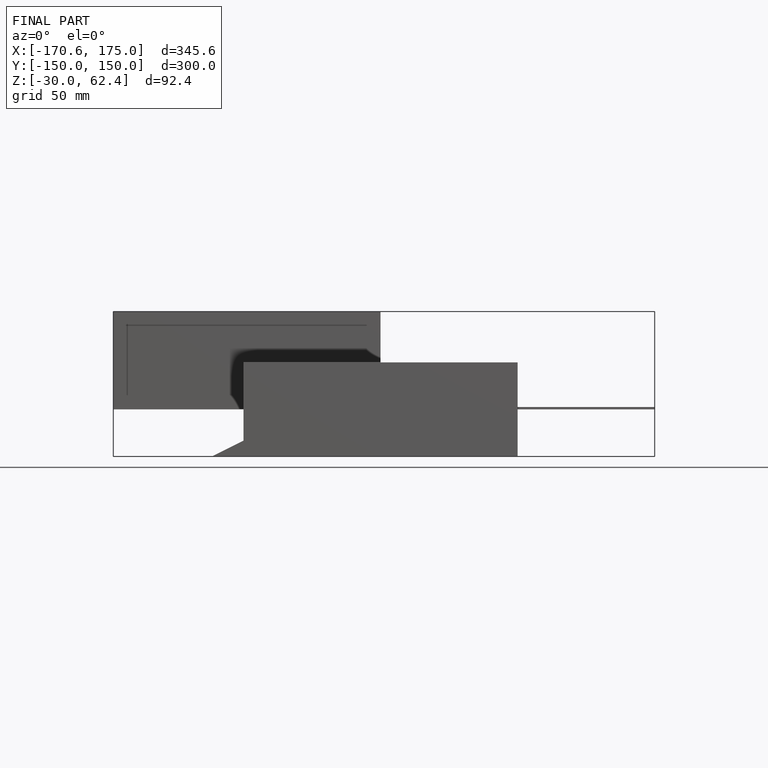
[diagram: finished part — front view with bounding-box wireframe]
